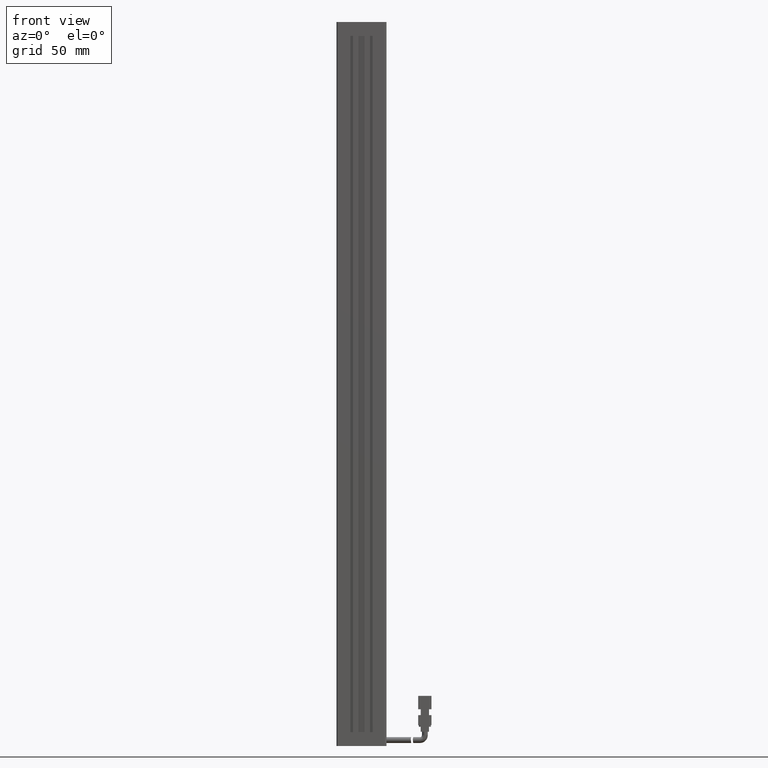
[diagram: clean part render]
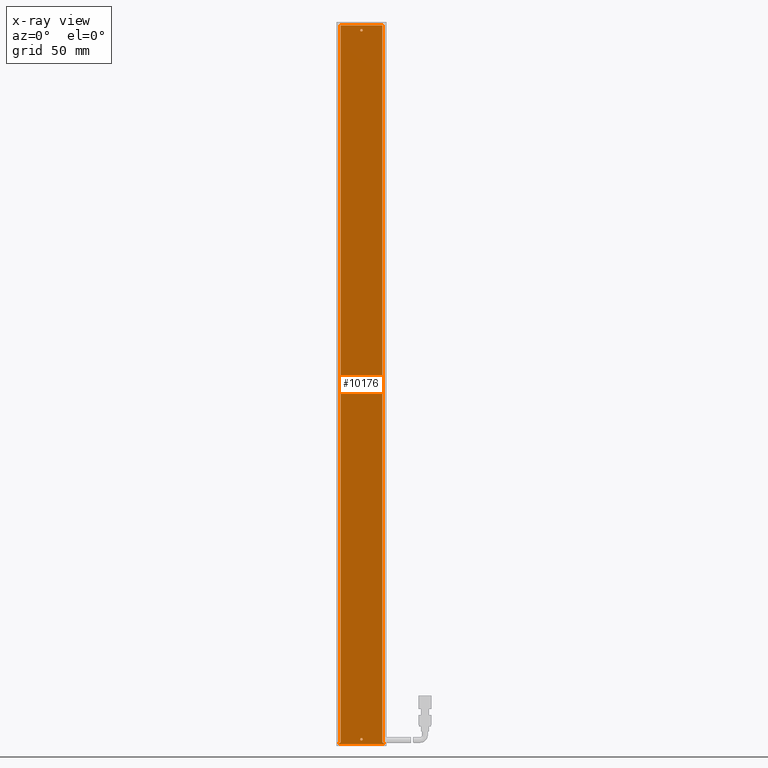
[diagram: x-ray — body ghosted, one internal face saturated and labeled with its STEP entity id]
A machine part, front view, then the same camera in x-ray: the body is ghosted and one INTERNAL B-rep face — a face not visible from any outside direction — is saturated and labeled: STEP entity #10176.
In plain terms, the highlighted planar face has unit normal (-0, 1, 0).
Its self-contained STEP definition (entity closure, byte-faithful):
#122 = CARTESIAN_POINT ( 'NONE',  ( 54.32537974683541600, 32.19594479660386100, 100.0000000000000900 ) ) ;
#206 = CARTESIAN_POINT ( 'NONE',  ( 27.52537974683534500, 32.19594479660386800, -330.0000000000000000 ) ) ;
#333 = VERTEX_POINT ( 'NONE', #16977 ) ;
#529 = DIRECTION ( 'NONE',  ( -0.0000000000000000000, -1.000000000000000000, -0.0000000000000000000 ) ) ;
#2038 = ORIENTED_EDGE ( 'NONE', *, *, #20031, .T. ) ;
#2524 = DIRECTION ( 'NONE',  ( 0.0000000000000000000, 0.0000000000000000000, 1.000000000000000000 ) ) ;
#2768 = CARTESIAN_POINT ( 'NONE',  ( 40.92537974683541800, 32.19594479660386100, 97.00000000000008500 ) ) ;
#3679 = AXIS2_PLACEMENT_3D ( 'NONE', #2768, #45882, #9032 ) ;
#4568 = ORIENTED_EDGE ( 'NONE', *, *, #46927, .F. ) ;
#5504 = CARTESIAN_POINT ( 'NONE',  ( 53.42537974683542500, 32.19594479660386800, 102.0000000000000000 ) ) ;
#6382 = DIRECTION ( 'NONE',  ( 5.551115123125781500E-017, 0.0000000000000000000, 1.000000000000000000 ) ) ;
#6438 = DIRECTION ( 'NONE',  ( 1.000000000000000000, 0.0000000000000000000, -5.551115123125781500E-017 ) ) ;
#6843 = LINE ( 'NONE', #8860, #70254 ) ;
#7209 = DIRECTION ( 'NONE',  ( -0.0000000000000000000, -1.000000000000000000, -0.0000000000000000000 ) ) ;
#7511 = CIRCLE ( 'NONE', #28458, 0.7499999999999729100 ) ;
#7522 = CARTESIAN_POINT ( 'NONE',  ( 54.32537974683536700, 32.19594479660386100, -330.9999999999998900 ) ) ;
#7688 = DIRECTION ( 'NONE',  ( -1.000000000000000000, -0.0000000000000000000, 0.0000000000000000000 ) ) ;
#8423 = VECTOR ( 'NONE', #39041, 1000.000000000000000 ) ;
#8597 = EDGE_CURVE ( 'NONE', #60728, #333, #55270, .T. ) ;
#8860 = CARTESIAN_POINT ( 'NONE',  ( 28.42537974683542100, 32.19594479660386800, 102.0000000000000000 ) ) ;
#9032 = DIRECTION ( 'NONE',  ( 0.0000000000000000000, 0.0000000000000000000, 1.000000000000000000 ) ) ;
#9348 = VECTOR ( 'NONE', #71612, 1000.000000000000000 ) ;
#10176 = ADVANCED_FACE ( 'NONE', ( #54644, #22094, #38464 ), #12339, .F. ) ;
#10278 = CARTESIAN_POINT ( 'NONE',  ( 40.92537974683542500, 32.19594479660386800, -330.0000000000000000 ) ) ;
#11254 = ORIENTED_EDGE ( 'NONE', *, *, #37848, .F. ) ;
#11586 = AXIS2_PLACEMENT_3D ( 'NONE', #122, #43282, #6382 ) ;
#11803 = CARTESIAN_POINT ( 'NONE',  ( 40.92537974683534700, 32.19594479660386100, -328.7499999999998900 ) ) ;
#12339 = PLANE ( 'NONE',  #11586 ) ;
#12571 = VECTOR ( 'NONE', #16471, 1000.000000000000000 ) ;
#14712 = VERTEX_POINT ( 'NONE', #46589 ) ;
#16232 = VERTEX_POINT ( 'NONE', #61511 ) ;
#16236 = EDGE_CURVE ( 'NONE', #53514, #51205, #38005, .T. ) ;
#16471 = DIRECTION ( 'NONE',  ( 1.000000000000000000, 0.0000000000000000000, 0.0000000000000000000 ) ) ;
#16977 = CARTESIAN_POINT ( 'NONE',  ( 40.92537974683541800, 32.19594479660386100, 97.75000000000008500 ) ) ;
#19717 = CARTESIAN_POINT ( 'NONE',  ( 40.92537974683534700, 32.19594479660386100, -327.2499999999999400 ) ) ;
#20031 = EDGE_CURVE ( 'NONE', #53514, #22882, #6843, .T. ) ;
#20525 = EDGE_CURVE ( 'NONE', #22882, #51855, #40557, .T. ) ;
#21276 = DIRECTION ( 'NONE',  ( -0.0000000000000000000, -0.0000000000000000000, -1.000000000000000000 ) ) ;
#22094 = FACE_BOUND ( 'NONE', #53411, .T. ) ;
#22882 = VERTEX_POINT ( 'NONE', #48573 ) ;
#23787 = EDGE_LOOP ( 'NONE', ( #50157, #77214, #2038, #33942, #48642, #75434, #24081, #45536 ) ) ;
#24081 = ORIENTED_EDGE ( 'NONE', *, *, #66994, .F. ) ;
#24564 = CARTESIAN_POINT ( 'NONE',  ( 54.32537974683541600, 32.19594479660386100, 100.0000000000000900 ) ) ;
#24872 = CARTESIAN_POINT ( 'NONE',  ( 53.42537974683542500, 32.19594479660386800, 99.99999999999998600 ) ) ;
#27846 = LINE ( 'NONE', #5504, #73007 ) ;
#27974 = AXIS2_PLACEMENT_3D ( 'NONE', #44098, #7209, #50217 ) ;
#28458 = AXIS2_PLACEMENT_3D ( 'NONE', #37533, #529, #43666 ) ;
#28774 = CIRCLE ( 'NONE', #27974, 0.7499999999999729100 ) ;
#29427 = ORIENTED_EDGE ( 'NONE', *, *, #8597, .F. ) ;
#29626 = LINE ( 'NONE', #59008, #60236 ) ;
#30273 = CARTESIAN_POINT ( 'NONE',  ( 28.42537974683542100, 32.19594479660386100, 100.0000000000000900 ) ) ;
#32600 = CARTESIAN_POINT ( 'NONE',  ( 54.32537974683541600, 32.19594479660386100, 100.0000000000000900 ) ) ;
#33942 = ORIENTED_EDGE ( 'NONE', *, *, #20525, .T. ) ;
#37160 = EDGE_CURVE ( 'NONE', #41960, #55134, #28774, .T. ) ;
#37407 = EDGE_CURVE ( 'NONE', #41575, #16232, #29626, .T. ) ;
#37463 = EDGE_CURVE ( 'NONE', #16232, #51855, #58338, .T. ) ;
#37533 = CARTESIAN_POINT ( 'NONE',  ( 40.92537974683534700, 32.19594479660386100, -327.9999999999998900 ) ) ;
#37848 = EDGE_CURVE ( 'NONE', #333, #60728, #70382, .T. ) ;
#38005 = LINE ( 'NONE', #24564, #46569 ) ;
#38464 = FACE_BOUND ( 'NONE', #39073, .T. ) ;
#39041 = DIRECTION ( 'NONE',  ( -5.551115123125781500E-017, -0.0000000000000000000, -1.000000000000000000 ) ) ;
#39073 = EDGE_LOOP ( 'NONE', ( #4568, #54373 ) ) ;
#39525 = DIRECTION ( 'NONE',  ( -0.0000000000000000000, -1.000000000000000000, -0.0000000000000000000 ) ) ;
#40440 = EDGE_CURVE ( 'NONE', #14712, #60210, #77807, .T. ) ;
#40557 = LINE ( 'NONE', #75025, #54814 ) ;
#41575 = VERTEX_POINT ( 'NONE', #7522 ) ;
#41960 = VERTEX_POINT ( 'NONE', #11803 ) ;
#42191 = DIRECTION ( 'NONE',  ( -0.0000000000000000000, -0.0000000000000000000, -1.000000000000000000 ) ) ;
#43282 = DIRECTION ( 'NONE',  ( -0.0000000000000000000, 1.000000000000000000, 0.0000000000000000000 ) ) ;
#43666 = DIRECTION ( 'NONE',  ( 0.0000000000000000000, 0.0000000000000000000, 1.000000000000000000 ) ) ;
#44098 = CARTESIAN_POINT ( 'NONE',  ( 40.92537974683534700, 32.19594479660386100, -327.9999999999998900 ) ) ;
#45536 = ORIENTED_EDGE ( 'NONE', *, *, #40440, .F. ) ;
#45882 = DIRECTION ( 'NONE',  ( -0.0000000000000000000, -1.000000000000000000, -0.0000000000000000000 ) ) ;
#46116 = CARTESIAN_POINT ( 'NONE',  ( 40.92537974683541800, 32.19594479660386100, 96.25000000000008500 ) ) ;
#46569 = VECTOR ( 'NONE', #6438, 1000.000000000000000 ) ;
#46589 = CARTESIAN_POINT ( 'NONE',  ( 53.42537974683542500, 32.19594479660386100, -330.0000000000000000 ) ) ;
#46927 = EDGE_CURVE ( 'NONE', #55134, #41960, #7511, .T. ) ;
#48573 = CARTESIAN_POINT ( 'NONE',  ( 28.42537974683542100, 32.19594479660386800, -330.0000000000000000 ) ) ;
#48642 = ORIENTED_EDGE ( 'NONE', *, *, #37463, .F. ) ;
#50157 = ORIENTED_EDGE ( 'NONE', *, *, #54394, .F. ) ;
#50217 = DIRECTION ( 'NONE',  ( 0.0000000000000000000, 0.0000000000000000000, 1.000000000000000000 ) ) ;
#51205 = VERTEX_POINT ( 'NONE', #24872 ) ;
#51855 = VERTEX_POINT ( 'NONE', #206 ) ;
#52281 = CARTESIAN_POINT ( 'NONE',  ( 54.32537974683540200, 32.19594479660386100, -330.0000000000000000 ) ) ;
#53411 = EDGE_LOOP ( 'NONE', ( #11254, #29427 ) ) ;
#53514 = VERTEX_POINT ( 'NONE', #30273 ) ;
#54373 = ORIENTED_EDGE ( 'NONE', *, *, #37160, .F. ) ;
#54394 = EDGE_CURVE ( 'NONE', #51205, #14712, #27846, .T. ) ;
#54644 = FACE_OUTER_BOUND ( 'NONE', #23787, .T. ) ;
#54814 = VECTOR ( 'NONE', #7688, 1000.000000000000000 ) ;
#55134 = VERTEX_POINT ( 'NONE', #19717 ) ;
#55270 = CIRCLE ( 'NONE', #63904, 0.7500000000000006700 ) ;
#58338 = LINE ( 'NONE', #65422, #9348 ) ;
#59008 = CARTESIAN_POINT ( 'NONE',  ( 54.32537974683540200, 32.19594479660386100, -330.9999999999998900 ) ) ;
#60210 = VERTEX_POINT ( 'NONE', #52281 ) ;
#60236 = VECTOR ( 'NONE', #65170, 1000.000000000000000 ) ;
#60728 = VERTEX_POINT ( 'NONE', #46116 ) ;
#61511 = CARTESIAN_POINT ( 'NONE',  ( 27.52537974683534500, 32.19594479660386100, -330.9999999999998900 ) ) ;
#63904 = AXIS2_PLACEMENT_3D ( 'NONE', #76099, #39525, #2524 ) ;
#65170 = DIRECTION ( 'NONE',  ( -1.000000000000000000, -0.0000000000000000000, 5.551115123125781500E-017 ) ) ;
#65422 = CARTESIAN_POINT ( 'NONE',  ( 27.52537974683537000, 32.19594479660386100, 100.0000000000000900 ) ) ;
#66994 = EDGE_CURVE ( 'NONE', #60210, #41575, #71824, .T. ) ;
#70254 = VECTOR ( 'NONE', #21276, 1000.000000000000000 ) ;
#70382 = CIRCLE ( 'NONE', #3679, 0.7500000000000006700 ) ;
#71612 = DIRECTION ( 'NONE',  ( 5.551115123125781500E-017, 0.0000000000000000000, 1.000000000000000000 ) ) ;
#71824 = LINE ( 'NONE', #32600, #8423 ) ;
#73007 = VECTOR ( 'NONE', #42191, 1000.000000000000000 ) ;
#75025 = CARTESIAN_POINT ( 'NONE',  ( 40.92537974683542500, 32.19594479660386800, -330.0000000000000000 ) ) ;
#75434 = ORIENTED_EDGE ( 'NONE', *, *, #37407, .F. ) ;
#76099 = CARTESIAN_POINT ( 'NONE',  ( 40.92537974683541800, 32.19594479660386100, 97.00000000000008500 ) ) ;
#77214 = ORIENTED_EDGE ( 'NONE', *, *, #16236, .F. ) ;
#77807 = LINE ( 'NONE', #10278, #12571 ) ;